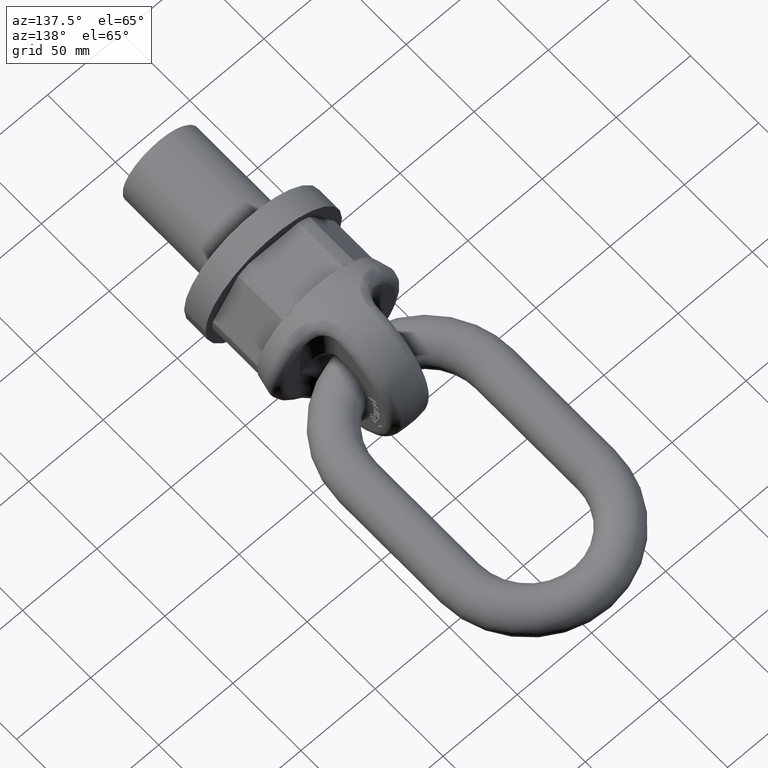
[diagram: clean part render]
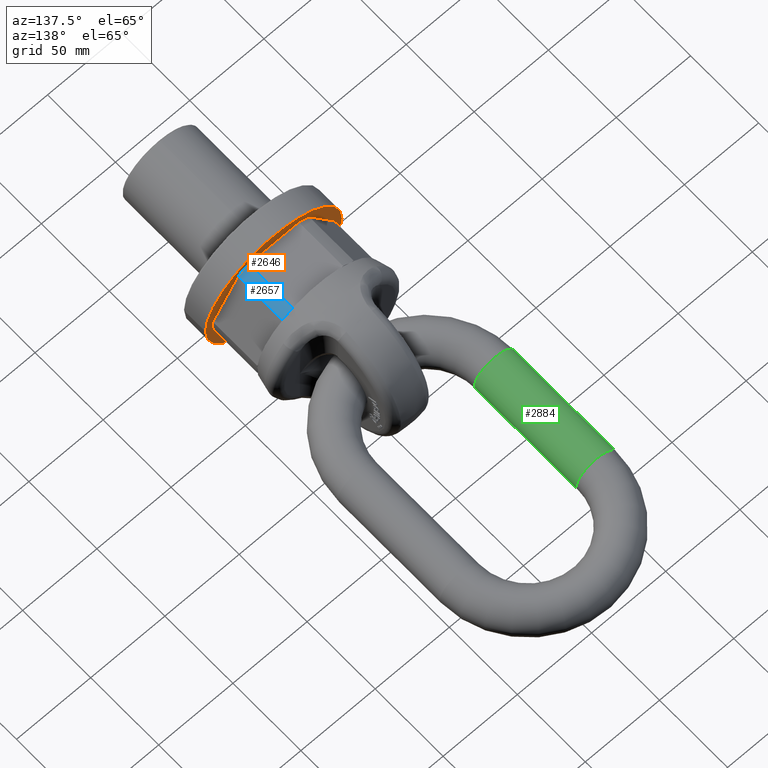
[diagram: same view with three faces highlighted in distinct colors, each labeled with its STEP entity id]
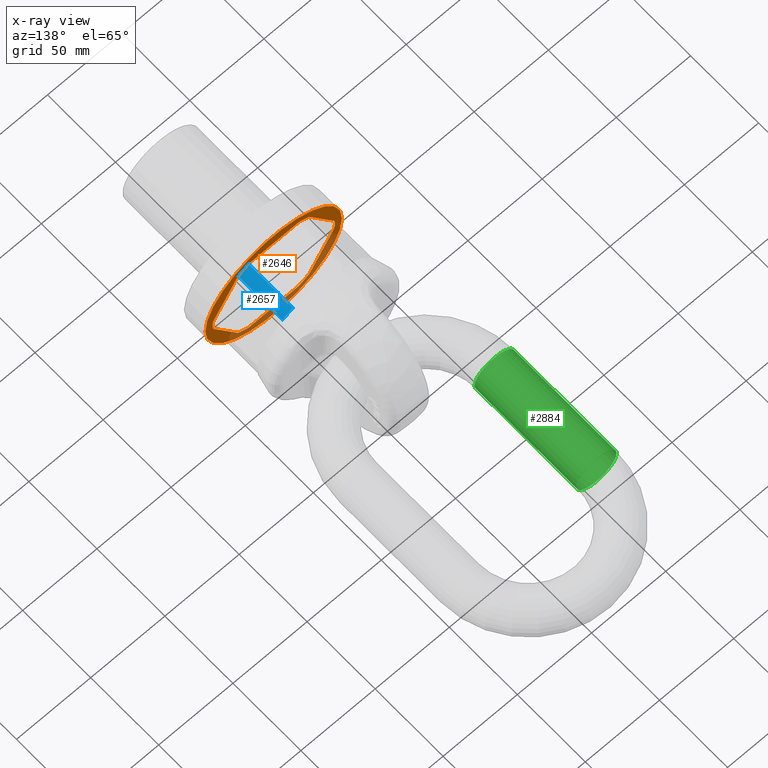
[diagram: x-ray of the same camera — body ghosted, the three highlighted faces saturated]
A machine part, auxiliary view with three faces highlighted in distinct colors.
The next image is the same camera in x-ray (body ghosted, the three faces saturated) — at least one of them is partly hidden behind the body in this view.
Their STEP definitions:

[orange] entity #2646 — the highlighted planar face has unit normal (-0, 1, 0).
#2041=LINE('',#6577,#2297);
#2042=LINE('',#6582,#2298);
#2043=LINE('',#6586,#2299);
#2044=LINE('',#6590,#2300);
#2045=LINE('',#6594,#2301);
#2046=LINE('',#6598,#2302);
#2297=VECTOR('',#5819,1.);
#2298=VECTOR('',#5822,1.);
#2299=VECTOR('',#5825,1.);
#2300=VECTOR('',#5828,1.);
#2301=VECTOR('',#5831,1.);
#2302=VECTOR('',#5834,1.);
#2646=ADVANCED_FACE('',(#2995,#2996),#2889,.T.);
#2889=PLANE('',#5614);
#2995=FACE_BOUND('',#3067,.T.);
#2996=FACE_BOUND('',#3068,.T.);
#3067=EDGE_LOOP('',(#3353));
#3068=EDGE_LOOP('',(#3354,#3355,#3356,#3357,#3358,#3359,#3360,#3361,#3362,
#3363,#3364,#3365));
#3353=ORIENTED_EDGE('',*,*,#4943,.F.);
#3354=ORIENTED_EDGE('',*,*,#4944,.F.);
#3355=ORIENTED_EDGE('',*,*,#4945,.T.);
#3356=ORIENTED_EDGE('',*,*,#4946,.F.);
#3357=ORIENTED_EDGE('',*,*,#4947,.T.);
#3358=ORIENTED_EDGE('',*,*,#4948,.F.);
#3359=ORIENTED_EDGE('',*,*,#4949,.T.);
#3360=ORIENTED_EDGE('',*,*,#4950,.F.);
#3361=ORIENTED_EDGE('',*,*,#4951,.T.);
#3362=ORIENTED_EDGE('',*,*,#4952,.F.);
#3363=ORIENTED_EDGE('',*,*,#4953,.T.);
#3364=ORIENTED_EDGE('',*,*,#4954,.F.);
#3365=ORIENTED_EDGE('',*,*,#4955,.T.);
#4545=VERTEX_POINT('',#6576);
#4546=VERTEX_POINT('',#6578);
#4547=VERTEX_POINT('',#6579);
#4548=VERTEX_POINT('',#6581);
#4549=VERTEX_POINT('',#6583);
#4550=VERTEX_POINT('',#6585);
#4551=VERTEX_POINT('',#6587);
#4552=VERTEX_POINT('',#6589);
#4553=VERTEX_POINT('',#6591);
#4554=VERTEX_POINT('',#6593);
#4555=VERTEX_POINT('',#6595);
#4556=VERTEX_POINT('',#6597);
#4557=VERTEX_POINT('',#6599);
#4943=EDGE_CURVE('',#4545,#4545,#5539,.T.);
#4944=EDGE_CURVE('',#4546,#4547,#2041,.T.);
#4945=EDGE_CURVE('',#4546,#4548,#5540,.T.);
#4946=EDGE_CURVE('',#4549,#4548,#2042,.T.);
#4947=EDGE_CURVE('',#4549,#4550,#5541,.T.);
#4948=EDGE_CURVE('',#4551,#4550,#2043,.T.);
#4949=EDGE_CURVE('',#4551,#4552,#5542,.T.);
#4950=EDGE_CURVE('',#4553,#4552,#2044,.T.);
#4951=EDGE_CURVE('',#4553,#4554,#5543,.T.);
#4952=EDGE_CURVE('',#4555,#4554,#2045,.T.);
#4953=EDGE_CURVE('',#4555,#4556,#5544,.T.);
#4954=EDGE_CURVE('',#4557,#4556,#2046,.T.);
#4955=EDGE_CURVE('',#4557,#4547,#5545,.T.);
#5539=CIRCLE('',#5607,46.);
#5540=CIRCLE('',#5608,41.1362066797608);
#5541=CIRCLE('',#5609,41.1362066797608);
#5542=CIRCLE('',#5610,41.1362066797608);
#5543=CIRCLE('',#5611,41.1362066797608);
#5544=CIRCLE('',#5612,41.1362066797608);
#5545=CIRCLE('',#5613,41.1362066797608);
#5607=AXIS2_PLACEMENT_3D('',#6575,#5817,#5818);
#5608=AXIS2_PLACEMENT_3D('',#6580,#5820,#5821);
#5609=AXIS2_PLACEMENT_3D('',#6584,#5823,#5824);
#5610=AXIS2_PLACEMENT_3D('',#6588,#5826,#5827);
#5611=AXIS2_PLACEMENT_3D('',#6592,#5829,#5830);
#5612=AXIS2_PLACEMENT_3D('',#6596,#5832,#5833);
#5613=AXIS2_PLACEMENT_3D('',#6600,#5835,#5836);
#5614=AXIS2_PLACEMENT_3D('',#6601,#5837,#5838);
#5817=DIRECTION('',(4.81111242522174E-17,-1.,0.));
#5818=DIRECTION('',(1.,7.54227598250786E-17,0.));
#5819=DIRECTION('',(0.499999999999999,2.40555621261087E-17,-0.866025403784439));
#5820=DIRECTION('',(4.81111242522174E-17,-1.,0.));
#5821=DIRECTION('',(-1.,-8.43404687010335E-17,0.));
#5822=DIRECTION('',(1.,4.81111242522174E-17,0.));
#5823=DIRECTION('',(4.81111242522174E-17,-1.,0.));
#5824=DIRECTION('',(-1.,-8.43404687010335E-17,0.));
#5825=DIRECTION('',(0.499999999999999,2.40555621261087E-17,0.866025403784439));
#5826=DIRECTION('',(4.81111242522174E-17,-1.,0.));
#5827=DIRECTION('',(-1.,-8.43404687010335E-17,0.));
#5828=DIRECTION('',(-0.499999999999999,-2.40555621261087E-17,0.866025403784439));
#5829=DIRECTION('',(4.81111242522174E-17,-1.,0.));
#5830=DIRECTION('',(-1.,-8.43404687010335E-17,0.));
#5831=DIRECTION('',(-1.,-4.81111242522174E-17,0.));
#5832=DIRECTION('',(4.81111242522174E-17,-1.,0.));
#5833=DIRECTION('',(-1.,-8.43404687010335E-17,0.));
#5834=DIRECTION('',(-0.499999999999999,-2.40555621261087E-17,-0.866025403784439));
#5835=DIRECTION('',(4.81111242522174E-17,-1.,0.));
#5836=DIRECTION('',(-1.,-8.43404687010335E-17,0.));
#5837=DIRECTION('',(-4.81111242522174E-17,1.,0.));
#5838=DIRECTION('',(-1.,-4.85722573273506E-17,0.));
#6575=CARTESIAN_POINT('',(-7.85815029452885E-16,16.3333333333333,0.));
#6576=CARTESIAN_POINT('',(46.,16.3333333333333,0.));
#6577=CARTESIAN_POINT('',(43.9759526419164,16.3333333333333,-1.16858428704211));
#6578=CARTESIAN_POINT('',(24.0211093553735,16.3333333333333,33.394218142325));
#6579=CARTESIAN_POINT('',(40.9307959284594,16.3333333333333,4.10578185767495));
#6580=CARTESIAN_POINT('',(-4.00051287721468E-16,16.3333333333333,0.));
#6581=CARTESIAN_POINT('',(16.9096865730858,16.3333333333333,37.5));
#6582=CARTESIAN_POINT('',(46.,16.3333333333333,37.5));
#6583=CARTESIAN_POINT('',(-16.9096865730858,16.3333333333333,37.5));
#6584=CARTESIAN_POINT('',(-4.00051287721468E-16,16.3333333333333,0.));
#6585=CARTESIAN_POINT('',(-24.0211093553735,16.3333333333333,33.394218142325));
#6586=CARTESIAN_POINT('',(-20.9759526419165,16.3333333333333,38.668584287042));
#6587=CARTESIAN_POINT('',(-40.9307959284594,16.3333333333333,4.10578185767493));
#6588=CARTESIAN_POINT('',(-4.00051287721468E-16,16.3333333333333,0.));
#6589=CARTESIAN_POINT('',(-40.9307959284594,16.3333333333333,-4.10578185767495));
#6590=CARTESIAN_POINT('',(-20.9759526419165,16.3333333333333,-38.668584287042));
#6591=CARTESIAN_POINT('',(-24.0211093553735,16.3333333333333,-33.394218142325));
#6592=CARTESIAN_POINT('',(-4.00051287721468E-16,16.3333333333333,0.));
#6593=CARTESIAN_POINT('',(-16.9096865730858,16.3333333333333,-37.5));
#6594=CARTESIAN_POINT('',(46.,16.3333333333333,-37.5));
#6595=CARTESIAN_POINT('',(16.9096865730858,16.3333333333333,-37.5));
#6596=CARTESIAN_POINT('',(-4.00051287721468E-16,16.3333333333333,0.));
#6597=CARTESIAN_POINT('',(24.0211093553735,16.3333333333333,-33.394218142325));
#6598=CARTESIAN_POINT('',(43.9759526419164,16.3333333333333,1.16858428704211));
#6599=CARTESIAN_POINT('',(40.9307959284594,16.3333333333333,-4.10578185767493));
#6600=CARTESIAN_POINT('',(-4.00051287721468E-16,16.3333333333333,0.));
#6601=CARTESIAN_POINT('',(46.,16.3333333333333,0.));

[blue] entity #2657 — the highlighted cylindrical surface (partial cylindrical patch) has radius 41.1362 mm, axis along (-0, 1, 0).
#1815=FACE_OUTER_BOUND('',#3080,.T.);
#2023=CYLINDRICAL_SURFACE('',#5632,41.1362066797608);
#2059=LINE('',#6629,#2315);
#2063=LINE('',#6637,#2319);
#2315=VECTOR('',#5863,1.);
#2319=VECTOR('',#5869,1.);
#2657=ADVANCED_FACE('',(#1815),#2023,.T.);
#3080=EDGE_LOOP('',(#3412,#3413,#3414,#3415));
#3412=ORIENTED_EDGE('',*,*,#4945,.F.);
#3413=ORIENTED_EDGE('',*,*,#4969,.T.);
#3414=ORIENTED_EDGE('',*,*,#4978,.T.);
#3415=ORIENTED_EDGE('',*,*,#4973,.T.);
#4546=VERTEX_POINT('',#6578);
#4548=VERTEX_POINT('',#6581);
#4567=VERTEX_POINT('',#6630);
#4570=VERTEX_POINT('',#6638);
#4945=EDGE_CURVE('',#4546,#4548,#5540,.T.);
#4969=EDGE_CURVE('',#4546,#4567,#2059,.T.);
#4973=EDGE_CURVE('',#4570,#4548,#2063,.T.);
#4978=EDGE_CURVE('',#4567,#4570,#5550,.T.);
#5540=CIRCLE('',#5608,41.1362066797608);
#5550=CIRCLE('',#5626,41.1362066797608);
#5608=AXIS2_PLACEMENT_3D('',#6580,#5820,#5821);
#5626=AXIS2_PLACEMENT_3D('',#6644,#5879,#5880);
#5632=AXIS2_PLACEMENT_3D('',#6650,#5891,#5892);
#5820=DIRECTION('',(4.81111242522174E-17,-1.,0.));
#5821=DIRECTION('',(-1.,-8.43404687010335E-17,0.));
#5863=DIRECTION('',(-2.4492935982947E-17,1.,0.));
#5869=DIRECTION('',(2.4492935982947E-17,-1.,0.));
#5879=DIRECTION('',(0.,-1.,0.));
#5880=DIRECTION('',(0.,0.,-1.));
#5891=DIRECTION('',(-2.4492935982947E-17,1.,0.));
#5892=DIRECTION('',(-1.,-2.4492935982947E-17,0.));
#6578=CARTESIAN_POINT('',(24.0211093553735,16.3333333333333,33.394218142325));
#6580=CARTESIAN_POINT('',(-4.00051287721468E-16,16.3333333333333,0.));
#6581=CARTESIAN_POINT('',(16.9096865730858,16.3333333333333,37.5));
#6629=CARTESIAN_POINT('',(24.0211093553735,-2.07083935363145E-16,33.394218142325));
#6630=CARTESIAN_POINT('',(24.0211093553735,49.,33.394218142325));
#6637=CARTESIAN_POINT('',(16.9096865730858,4.14167870726291E-16,37.5));
#6638=CARTESIAN_POINT('',(16.9096865730858,49.,37.5));
#6644=CARTESIAN_POINT('',(-1.20015386316441E-15,49.,0.));
#6650=CARTESIAN_POINT('',(0.,0.,0.));

[green] entity #2884 — the highlighted cylindrical surface (bore or boss wall) has radius 13.5 mm, axis along (0, 1, 0).
#2039=CYLINDRICAL_SURFACE('',#5803,13.5);
#2884=ADVANCED_FACE('',(#3057,#3058),#2039,.T.);
#3057=FACE_BOUND('',#3343,.T.);
#3058=FACE_BOUND('',#3344,.T.);
#3343=EDGE_LOOP('',(#4535));
#3344=EDGE_LOOP('',(#4536));
#4535=ORIENTED_EDGE('',*,*,#5533,.T.);
#4536=ORIENTED_EDGE('',*,*,#5534,.F.);
#4937=VERTEX_POINT('',#9750);
#4938=VERTEX_POINT('',#9752);
#5533=EDGE_CURVE('',#4937,#4937,#5599,.T.);
#5534=EDGE_CURVE('',#4938,#4938,#5600,.T.);
#5599=CIRCLE('',#5801,13.5);
#5600=CIRCLE('',#5802,13.5);
#5801=AXIS2_PLACEMENT_3D('',#9749,#6553,#6554);
#5802=AXIS2_PLACEMENT_3D('',#9751,#6555,#6556);
#5803=AXIS2_PLACEMENT_3D('',#9753,#6557,#6558);
#6553=DIRECTION('',(-1.01064309961486E-15,1.,0.));
#6554=DIRECTION('',(0.,0.,-1.));
#6555=DIRECTION('',(-1.01064309961486E-15,1.,0.));
#6556=DIRECTION('',(0.,0.,-1.));
#6557=DIRECTION('',(0.,1.,0.));
#6558=DIRECTION('',(0.,0.,1.));
#9749=CARTESIAN_POINT('',(-46.,128.5,0.));
#9750=CARTESIAN_POINT('',(-46.,128.5,-13.5));
#9751=CARTESIAN_POINT('',(-46.,203.5,0.));
#9752=CARTESIAN_POINT('',(-46.,203.5,-13.5));
#9753=CARTESIAN_POINT('',(-46.,128.5,0.));